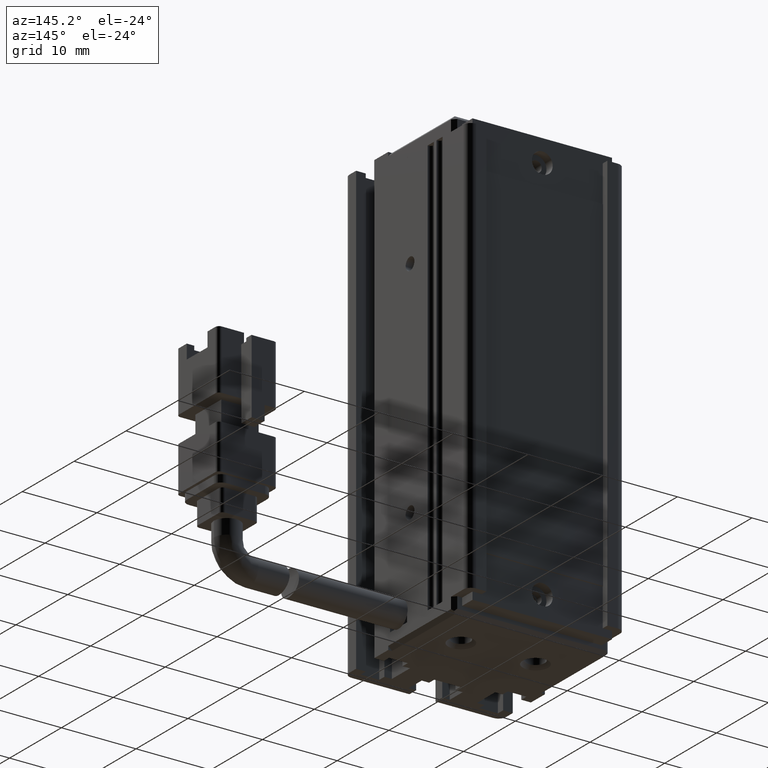
[diagram: clean part render]
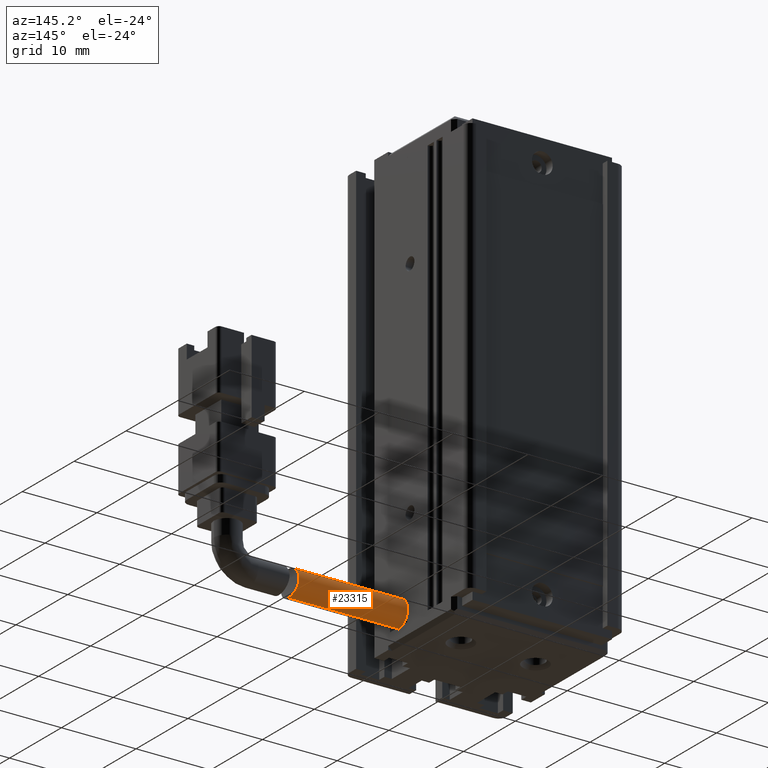
[diagram: same view with one face highlighted and labeled with its STEP entity id]
A machine part, auxiliary view. The second image highlights one B-rep face of the part: STEP entity #23315.
In plain terms, the highlighted cylindrical surface (edge-blend (fillet) strip) has radius 1.75 mm, axis along (-1, -0, -0).
Its self-contained STEP definition (entity closure, byte-faithful):
#720 = CARTESIAN_POINT ( 'NONE',  ( 40.92537974683537500, 17.58379746835454300, -141.4499999999999600 ) ) ;
#1015 = CARTESIAN_POINT ( 'NONE',  ( 55.47024437261942600, 19.28727451156201400, -140.9887505292055300 ) ) ;
#1201 = CARTESIAN_POINT ( 'NONE',  ( 55.57835221810201200, 18.65067258446814300, -140.0581316121933400 ) ) ;
#1415 = VERTEX_POINT ( 'NONE', #13548 ) ;
#1725 = DIRECTION ( 'NONE',  ( -1.000000000000000000, -3.304235192336770000E-015, -8.579261317967046800E-031 ) ) ;
#3091 = CARTESIAN_POINT ( 'NONE',  ( 55.66909918599569800, 17.69987373534211600, -139.7000000000000200 ) ) ;
#3181 = CARTESIAN_POINT ( 'NONE',  ( 55.63743220877904600, 18.65368483946463800, -142.8395406144933900 ) ) ;
#3351 = CARTESIAN_POINT ( 'NONE',  ( 55.51781632386868600, 19.24464255871041400, -142.0132809039903300 ) ) ;
#3558 = ORIENTED_EDGE ( 'NONE', *, *, #22073, .F. ) ;
#3773 = CIRCLE ( 'NONE', #9334, 1.750000000000001600 ) ;
#3906 = DIRECTION ( 'NONE',  ( 0.0000000000000000000, 0.0000000000000000000, 1.000000000000000000 ) ) ;
#4699 = CYLINDRICAL_SURFACE ( 'NONE', #10882, 1.750000000000001600 ) ;
#5546 = LINE ( 'NONE', #19086, #10703 ) ;
#5549 = CARTESIAN_POINT ( 'NONE',  ( 55.62463420223006200, 18.74153990855368300, -142.7673024940899300 ) ) ;
#6372 = DIRECTION ( 'NONE',  ( -1.000000000000000000, -3.304235192336770000E-015, -8.579261317967046800E-031 ) ) ;
#6915 = EDGE_CURVE ( 'NONE', #1415, #16662, #24999, .T. ) ;
#7588 = CARTESIAN_POINT ( 'NONE',  ( 55.50678294115662900, 19.27769859378787500, -141.9041675512314400 ) ) ;
#7675 = CARTESIAN_POINT ( 'NONE',  ( 55.64312513808747700, 18.14924902229548900, -139.7899194494976600 ) ) ;
#7769 = CARTESIAN_POINT ( 'NONE',  ( 55.46799919059766600, 19.33368179683941800, -141.2199166147517200 ) ) ;
#7859 = EDGE_CURVE ( 'NONE', #25792, #18915, #3773, .T. ) ;
#7860 = CARTESIAN_POINT ( 'NONE',  ( 55.48855349268927000, 19.32238839217925600, -141.6799364845564600 ) ) ;
#9334 = AXIS2_PLACEMENT_3D ( 'NONE', #720, #18263, #13711 ) ;
#9768 = CARTESIAN_POINT ( 'NONE',  ( 55.60664507071450700, 18.46089904319699600, -139.9313779437375200 ) ) ;
#9944 = CARTESIAN_POINT ( 'NONE',  ( 55.55492445293651100, 19.11284061511919300, -142.3316429091015600 ) ) ;
#10208 = CARTESIAN_POINT ( 'NONE',  ( 40.92537974683537500, 17.58379746835456800, -143.1999999999999600 ) ) ;
#10703 = VECTOR ( 'NONE', #1725, 1000.000000000000000 ) ;
#10882 = AXIS2_PLACEMENT_3D ( 'NONE', #25983, #26086, #3906 ) ;
#11796 = CARTESIAN_POINT ( 'NONE',  ( 55.70621967933267600, 17.58379746835458900, -143.1999999999999600 ) ) ;
#11976 = CARTESIAN_POINT ( 'NONE',  ( 55.70621967933268300, 17.81589383775427400, -143.2000000000000200 ) ) ;
#12168 = CARTESIAN_POINT ( 'NONE',  ( 55.66064130294125100, 18.46447579045407000, -142.9665380968414800 ) ) ;
#12861 = EDGE_LOOP ( 'NONE', ( #27926, #15446, #16823, #3558 ) ) ;
#12896 = EDGE_CURVE ( 'NONE', #16662, #25792, #28040, .T. ) ;
#13290 = FACE_OUTER_BOUND ( 'NONE', #12861, .T. ) ;
#13548 = CARTESIAN_POINT ( 'NONE',  ( 55.66909918599568400, 17.58379746835459300, -139.6999999999999600 ) ) ;
#13711 = DIRECTION ( 'NONE',  ( 0.0000000000000000000, 0.0000000000000000000, 1.000000000000000000 ) ) ;
#14203 = CARTESIAN_POINT ( 'NONE',  ( 55.65272929082432500, 18.03797710559329200, -139.7561066842592700 ) ) ;
#14299 = CARTESIAN_POINT ( 'NONE',  ( 55.62003836585692100, 18.36067830432336100, -139.8777216974356200 ) ) ;
#15446 = ORIENTED_EDGE ( 'NONE', *, *, #12896, .T. ) ;
#15574 = VECTOR ( 'NONE', #6372, 1000.000000000000000 ) ;
#16335 = CARTESIAN_POINT ( 'NONE',  ( 55.48134991565429900, 19.33385497111003900, -141.5637194744110400 ) ) ;
#16429 = CARTESIAN_POINT ( 'NONE',  ( 55.69668055208007500, 18.04484427152810300, -143.1536289975071000 ) ) ;
#16521 = CARTESIAN_POINT ( 'NONE',  ( 55.52159805663031700, 18.98134885199781900, -140.3725020553220000 ) ) ;
#16662 = VERTEX_POINT ( 'NONE', #24676 ) ;
#16823 = ORIENTED_EDGE ( 'NONE', *, *, #7859, .T. ) ;
#18263 = DIRECTION ( 'NONE',  ( 1.000000000000000000, 3.304235192336770000E-015, 8.579261317967046800E-031 ) ) ;
#18738 = CARTESIAN_POINT ( 'NONE',  ( 55.58400798320374700, 18.98457160922038500, -142.5237529889949700 ) ) ;
#18915 = VERTEX_POINT ( 'NONE', #25534 ) ;
#19086 = CARTESIAN_POINT ( 'NONE',  ( 60.92537974683537500, 17.58379746835461100, -139.6999999999999600 ) ) ;
#20672 = CARTESIAN_POINT ( 'NONE',  ( 55.66909918599568400, 17.58379746835459300, -139.6999999999999600 ) ) ;
#20954 = CARTESIAN_POINT ( 'NONE',  ( 55.49693793915957900, 19.11200672183655800, -140.5672986979645900 ) ) ;
#21870 = CARTESIAN_POINT ( 'NONE',  ( 60.92537974683537500, 17.58379746835461100, -143.1999999999999600 ) ) ;
#22073 = EDGE_CURVE ( 'NONE', #1415, #18915, #5546, .T. ) ;
#23315 = ADVANCED_FACE ( 'NONE', ( #13290 ), #4699, .T. ) ;
#24676 = CARTESIAN_POINT ( 'NONE',  ( 55.70621967933267600, 17.58379746835458900, -143.1999999999999600 ) ) ;
#24999 = B_SPLINE_CURVE_WITH_KNOTS ( 'NONE', 3,
 ( #20672, #3091, #25409, #14203, #7675, #14299, #9768, #1201, #25133, #16521, #20954, #1015, #7769, #16335, #7860, #7588, #3351, #9944, #18738, #5549, #3181, #12168, #27648, #16429, #11976, #11796 ),
 .UNSPECIFIED., .F., .F.,
 ( 4, 2, 2, 2, 2, 2, 2, 2, 2, 2, 2, 2, 4 ),
 ( 0.005490571999675114000, 0.005833718808239202900, 0.006176865616803290900, 0.006520012425367379700, 0.006863159233931468600, 0.007549452851059596800, 0.008235746468187725100, 0.008578893276751830400, 0.008922040085315937500, 0.009608333702444151600, 0.009951480511008262100, 0.01029462731957237300, 0.01098092093670055000 ),
 .UNSPECIFIED. ) ;
#25133 = CARTESIAN_POINT ( 'NONE',  ( 55.56343873949747800, 18.74016058887081800, -140.1315777397997000 ) ) ;
#25409 = CARTESIAN_POINT ( 'NONE',  ( 55.66564187166542900, 17.81388093968112700, -139.7114329739075900 ) ) ;
#25534 = CARTESIAN_POINT ( 'NONE',  ( 40.92537974683537500, 17.58379746835454300, -139.6999999999999600 ) ) ;
#25792 = VERTEX_POINT ( 'NONE', #10208 ) ;
#25983 = CARTESIAN_POINT ( 'NONE',  ( 60.92537974683537500, 17.58379746835461100, -141.4499999999999600 ) ) ;
#26086 = DIRECTION ( 'NONE',  ( -1.000000000000000000, -3.304235192336770000E-015, -8.579261317967046800E-031 ) ) ;
#27648 = CARTESIAN_POINT ( 'NONE',  ( 55.67113496622536000, 18.36189929486539500, -143.0216747521504300 ) ) ;
#27926 = ORIENTED_EDGE ( 'NONE', *, *, #6915, .T. ) ;
#28040 = LINE ( 'NONE', #21870, #15574 ) ;